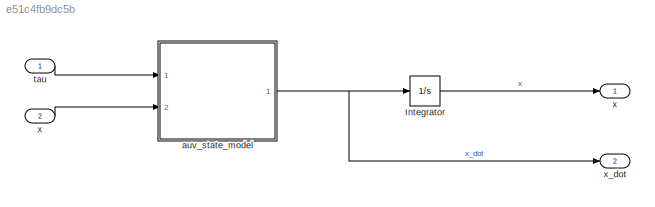
MODEL slx_e51c4fb9dc5b
KIND model
CONFIG AbsTol = auto
CONFIG EnableMultiTasking = off
CONFIG FixedStep = auto
CONFIG MaxStep = auto
CONFIG MinStep = auto
CONFIG RelTol = 1e-3
CONFIG SampleTimeConstraint = Unconstrained
CONFIG Solver = VariableStepAuto
CONFIG SolverName = VariableStepAuto
CONFIG StartTime = 0.0
CONFIG StopTime = 10.0
BLOCK [Integrator] Integrator
  InitialCondition = [eta_0;0;0;0;0;0;0]
  Ports = [1, 1]
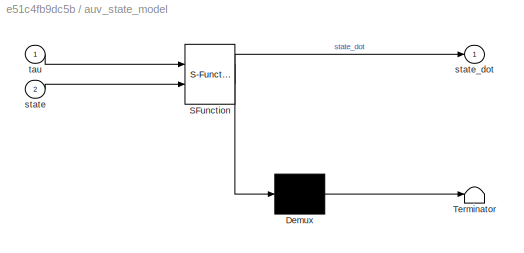
BLOCK [SubSystem] auv_state_model
  ErrorFcn = Stateflow.Translate.translate
  PermitHierarchicalResolution = ExplicitOnly
  Ports = [2, 1]
  RequestExecContextInheritance = off
  SFBlockType = MATLAB Function
  TreatAsAtomicUnit = on
BLOCK [Demux] auv_state_model/ Demux 
  Outputs = 1
  Ports = [1, 1]
BLOCK [S-Function] auv_state_model/ SFunction 
  EnableBusSupport = on
  FunctionName = sf_sfun
  Parameters = params
  PortCounts = [2 2]
  Ports = [2, 2]
  SFcnIsStateOwnerBlock = off
  SFunctionDeploymentMode = off
  Tag = Stateflow S-Function 2
BLOCK [Terminator] auv_state_model/ Terminator 
BLOCK [Inport] auv_state_model/state
  IconDisplay = Port number
  Port = 2
BLOCK [Outport] auv_state_model/state_dot
  IconDisplay = Port number
  VectorParamsAs1DForOutWhenUnconnected = off
BLOCK [Inport] auv_state_model/tau
  IconDisplay = Port number
BLOCK [Inport] tau
  IconDisplay = Port number
  PortDimensions = 6
BLOCK [Outport] x
  IconDisplay = Port number
  PortDimensions = 12
  VectorParamsAs1DForOutWhenUnconnected = off
BLOCK [Inport] x 
  IconDisplay = Port number
  Port = 2
  PortDimensions = 12
BLOCK [Outport] x_dot
  IconDisplay = Port number
  Port = 2
LINE Integrator:1 -> x:1
NET auv_state_model:1 -> Integrator:1, x_dot:1
LINE tau:1 -> auv_state_model:1
LINE x :1 -> auv_state_model:2
note: NET lines group one-source signal fan-out (src -> all destinations, sorted); 1:1 wires keep LINE
CHART auv_state_model states=1 transitions=1
  STATE_LABEL 'eML_blk_kernel()'
  STATE_LABEL 'SCRIPT:\nfunction state_dot  = auv(tau, state, params)\n%\n% [state_dot] = auv(tau, state, params) returns the time derivative of the \n% state vector for the UBC Subbots Autonomous Underwater Vehicle \n% (AUV). Given an input state (state = [u v w p q r x y z phi theta psi])\n% and a desired external force input (tau = [Xe Ye Ze Ke Me Ne]), this\n% will return: state_dot = [u_dot v_dot w_dot p_dot q_dot...<+3608ch>'
